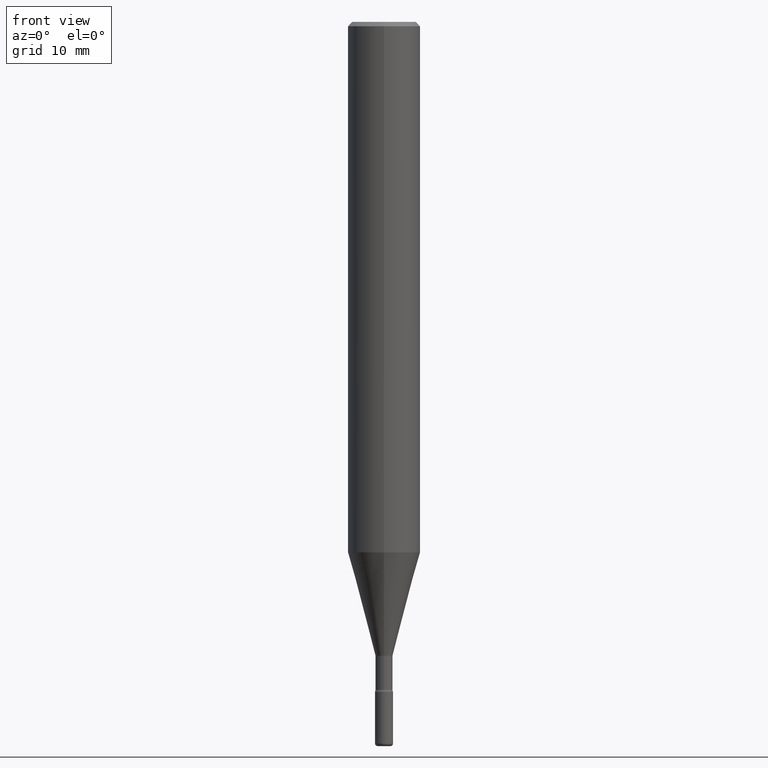
[diagram: clean part render]
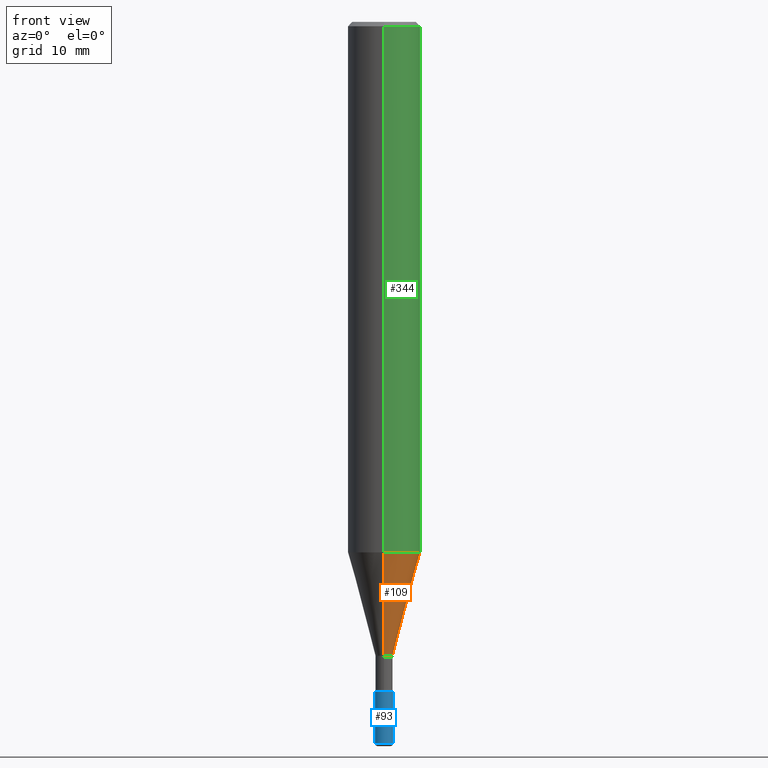
[diagram: same view with three faces highlighted in distinct colors, each labeled with its STEP entity id]
A machine part, front view with three faces highlighted in distinct colors.
Their STEP definitions:

[orange] entity #109 — the highlighted conical surface has half-angle 15 deg.
#7 = ORIENTED_EDGE ( 'NONE', *, *, #61, .T. ) ;
#13 = CARTESIAN_POINT ( 'NONE',  ( 5.345986003927349393E-29, -7.632751320780443550E-15, -2.186092501787273434 ) ) ;
#23 = AXIS2_PLACEMENT_3D ( 'NONE', #532, #141, #454 ) ;
#61 = EDGE_CURVE ( 'NONE', #81, #74, #410, .T. ) ;
#72 = AXIS2_PLACEMENT_3D ( 'NONE', #13, #225, #318 ) ;
#74 = VERTEX_POINT ( 'NONE', #264 ) ;
#81 = VERTEX_POINT ( 'NONE', #167 ) ;
#109 = ADVANCED_FACE ( 'NONE', ( #234 ), #490, .T. ) ;
#114 = EDGE_LOOP ( 'NONE', ( #7, #201, #425, #518 ) ) ;
#119 = DIRECTION ( 'NONE',  ( -6.982962677686265922E-15, -1.000000000000000000, 0.000000000000000000 ) ) ;
#141 = DIRECTION ( 'NONE',  ( -2.445452788277100287E-29, 3.491504277399136299E-15, 1.000000000000000000 ) ) ;
#143 = EDGE_CURVE ( 'NONE', #237, #198, #501, .T. ) ;
#155 = AXIS2_PLACEMENT_3D ( 'NONE', #388, #477, #119 ) ;
#167 = CARTESIAN_POINT ( 'NONE',  ( -2.088681829733692852E-16, -0.02991111260567161020, -2.186092501787273434 ) ) ;
#188 = VECTOR ( 'NONE', #358, 39.37007874015748854 ) ;
#189 = LINE ( 'NONE', #232, #188 ) ;
#198 = VERTEX_POINT ( 'NONE', #539 ) ;
#201 = ORIENTED_EDGE ( 'NONE', *, *, #476, .T. ) ;
#225 = DIRECTION ( 'NONE',  ( -2.445452788277100287E-29, 3.491504277399136299E-15, 1.000000000000000000 ) ) ;
#226 = CARTESIAN_POINT ( 'NONE',  ( -2.088681829733692852E-16, -0.02991111260567161020, -2.186092501787273434 ) ) ;
#230 = CARTESIAN_POINT ( 'NONE',  ( -8.728703347107386696E-16, -0.1250000000000064115, -1.831215942796415863 ) ) ;
#232 = CARTESIAN_POINT ( 'NONE',  ( 2.125312378046224579E-16, 0.02991111260565634464, -2.186092501787273434 ) ) ;
#234 = FACE_OUTER_BOUND ( 'NONE', #114, .T. ) ;
#237 = VERTEX_POINT ( 'NONE', #230 ) ;
#264 = CARTESIAN_POINT ( 'NONE',  ( 5.503548287523965372E-16, 0.02991111260565634811, -2.186092501787273434 ) ) ;
#280 = LINE ( 'NONE', #226, #543 ) ;
#318 = DIRECTION ( 'NONE',  ( -6.982962677686265922E-15, -1.000000000000000000, 0.000000000000000000 ) ) ;
#358 = DIRECTION ( 'NONE',  ( 1.839019923739597949E-15, 0.2588190451025246253, 0.9659258262890670910 ) ) ;
#388 = CARTESIAN_POINT ( 'NONE',  ( 5.345986003927349393E-29, -7.632751320780443550E-15, -2.186092501787273434 ) ) ;
#410 = CIRCLE ( 'NONE', #155, 0.02991111260566397742 ) ;
#422 = EDGE_CURVE ( 'NONE', #81, #237, #280, .T. ) ;
#425 = ORIENTED_EDGE ( 'NONE', *, *, #143, .F. ) ;
#454 = DIRECTION ( 'NONE',  ( -6.982962677686265922E-15, -1.000000000000000000, 4.370956789862821150E-15 ) ) ;
#476 = EDGE_CURVE ( 'NONE', #74, #198, #189, .T. ) ;
#477 = DIRECTION ( 'NONE',  ( -2.445452788277100287E-29, 3.491504277399136299E-15, 1.000000000000000000 ) ) ;
#490 = CONICAL_SURFACE ( 'NONE', #72, 0.02991111260566397742, 0.2617993877991499629 ) ;
#497 = DIRECTION ( 'NONE',  ( -1.807323732225328167E-15, -0.2588190451025179084, 0.9659258262890690894 ) ) ;
#501 = CIRCLE ( 'NONE', #23, 0.1250000000000000000 ) ;
#518 = ORIENTED_EDGE ( 'NONE', *, *, #422, .F. ) ;
#532 = CARTESIAN_POINT ( 'NONE',  ( 4.478152133248975156E-29, -6.393698297115179896E-15, -1.831215942796416307 ) ) ;
#539 = CARTESIAN_POINT ( 'NONE',  ( 8.881784197001696058E-16, 0.1249999999999935746, -1.831215942796416973 ) ) ;
#543 = VECTOR ( 'NONE', #497, 39.37007874015748143 ) ;

[blue] entity #93 — the highlighted cylindrical surface (edge-blend (fillet) strip) has radius 0.7937 mm, axis along (-0, 0, 1).
#1 = DIRECTION ( 'NONE',  ( -2.445468806185136597E-29, 3.491481338843145583E-15, 1.000000000000000000 ) ) ;
#5 = CARTESIAN_POINT ( 'NONE',  ( -0.03125000000000000000, 2.220446049250313081E-16, -1.537167215704658057E-30 ) ) ;
#16 = CARTESIAN_POINT ( 'NONE',  ( 5.653923879900035579E-29, -8.072304855405352780E-15, -2.312000000000000277 ) ) ;
#51 = CARTESIAN_POINT ( 'NONE',  ( 0.03125000000000000000, -8.290522439083049403E-15, -2.312000000000000277 ) ) ;
#58 = AXIS2_PLACEMENT_3D ( 'NONE', #566, #261, #434 ) ;
#67 = ORIENTED_EDGE ( 'NONE', *, *, #140, .T. ) ;
#76 = CYLINDRICAL_SURFACE ( 'NONE', #58, 0.03125000000000000000 ) ;
#87 = CARTESIAN_POINT ( 'NONE',  ( 6.089217327400989947E-29, -8.693788533719431716E-15, -2.489999999999999769 ) ) ;
#93 = ADVANCED_FACE ( 'NONE', ( #306 ), #76, .T. ) ;
#108 = CIRCLE ( 'NONE', #433, 0.03125000000000000000 ) ;
#124 = VERTEX_POINT ( 'NONE', #489 ) ;
#125 = ORIENTED_EDGE ( 'NONE', *, *, #327, .T. ) ;
#135 = EDGE_LOOP ( 'NONE', ( #371, #67, #125, #470 ) ) ;
#137 = DIRECTION ( 'NONE',  ( -2.445468806185136597E-29, 3.491481338843145583E-15, 1.000000000000000000 ) ) ;
#140 = EDGE_CURVE ( 'NONE', #124, #253, #163, .T. ) ;
#146 = AXIS2_PLACEMENT_3D ( 'NONE', #87, #137, #415 ) ;
#163 = CIRCLE ( 'NONE', #146, 0.03125000000000000000 ) ;
#199 = LINE ( 'NONE', #334, #323 ) ;
#247 = VERTEX_POINT ( 'NONE', #51 ) ;
#253 = VERTEX_POINT ( 'NONE', #529 ) ;
#260 = VECTOR ( 'NONE', #363, 39.37007874015748143 ) ;
#261 = DIRECTION ( 'NONE',  ( -2.445468806185136597E-29, 3.491481338843145583E-15, 1.000000000000000000 ) ) ;
#306 = FACE_OUTER_BOUND ( 'NONE', #135, .T. ) ;
#323 = VECTOR ( 'NONE', #506, 39.37007874015748143 ) ;
#327 = EDGE_CURVE ( 'NONE', #253, #247, #199, .T. ) ;
#334 = CARTESIAN_POINT ( 'NONE',  ( 0.03125000000000000000, -2.182175836776958347E-16, 1.523805242436229935E-30 ) ) ;
#363 = DIRECTION ( 'NONE',  ( -2.445468806185136877E-29, 3.491481338843145188E-15, 1.000000000000000000 ) ) ;
#371 = ORIENTED_EDGE ( 'NONE', *, *, #485, .F. ) ;
#404 = DIRECTION ( 'NONE',  ( 1.000000000000000000, -6.982962677686262766E-15, 0.000000000000000000 ) ) ;
#407 = VERTEX_POINT ( 'NONE', #460 ) ;
#415 = DIRECTION ( 'NONE',  ( 1.000000000000000000, -6.982962677686294321E-15, 0.000000000000000000 ) ) ;
#433 = AXIS2_PLACEMENT_3D ( 'NONE', #16, #1, #404 ) ;
#434 = DIRECTION ( 'NONE',  ( 1.000000000000000000, -6.982962677686266711E-15, 4.876176775795935793E-29 ) ) ;
#445 = LINE ( 'NONE', #5, #260 ) ;
#460 = CARTESIAN_POINT ( 'NONE',  ( -0.03125000000000000000, -8.161002089637361728E-15, -2.312000000000000277 ) ) ;
#467 = EDGE_CURVE ( 'NONE', #407, #247, #108, .T. ) ;
#470 = ORIENTED_EDGE ( 'NONE', *, *, #467, .F. ) ;
#485 = EDGE_CURVE ( 'NONE', #124, #407, #445, .T. ) ;
#489 = CARTESIAN_POINT ( 'NONE',  ( -0.03125000000000018041, -8.471743928794400408E-15, -2.489999999999999769 ) ) ;
#506 = DIRECTION ( 'NONE',  ( -2.445468806185136877E-29, 3.491481338843145188E-15, 1.000000000000000000 ) ) ;
#529 = CARTESIAN_POINT ( 'NONE',  ( 0.03125000000000018041, -8.912006117397128339E-15, -2.489999999999999769 ) ) ;
#566 = CARTESIAN_POINT ( 'NONE',  ( 0.000000000000000000, 0.000000000000000000, 0.000000000000000000 ) ) ;

[green] entity #344 — the highlighted cylindrical surface (edge-blend (fillet) strip) has radius 3.175 mm, axis along (-0, 0, 1).
#11 = AXIS2_PLACEMENT_3D ( 'NONE', #299, #557, #565 ) ;
#23 = AXIS2_PLACEMENT_3D ( 'NONE', #532, #141, #454 ) ;
#55 = CARTESIAN_POINT ( 'NONE',  ( -8.728703347107832402E-16, -0.1250000000000000000, 9.145114335661381006E-16 ) ) ;
#59 = LINE ( 'NONE', #55, #196 ) ;
#64 = ORIENTED_EDGE ( 'NONE', *, *, #248, .T. ) ;
#69 = DIRECTION ( 'NONE',  ( -6.982962677686265922E-15, -1.000000000000000000, 3.491504277399136299E-15 ) ) ;
#98 = CIRCLE ( 'NONE', #11, 0.1250000000000000000 ) ;
#106 = VECTOR ( 'NONE', #571, 39.37007874015748143 ) ;
#141 = DIRECTION ( 'NONE',  ( -2.445452788277100287E-29, 3.491504277399136299E-15, 1.000000000000000000 ) ) ;
#143 = EDGE_CURVE ( 'NONE', #237, #198, #501, .T. ) ;
#148 = VERTEX_POINT ( 'NONE', #405 ) ;
#153 = CYLINDRICAL_SURFACE ( 'NONE', #184, 0.1250000000000000000 ) ;
#184 = AXIS2_PLACEMENT_3D ( 'NONE', #417, #373, #69 ) ;
#187 = VERTEX_POINT ( 'NONE', #364 ) ;
#190 = CARTESIAN_POINT ( 'NONE',  ( 8.881784197001251337E-16, 0.1250000000000000000, 4.163536421635405055E-17 ) ) ;
#195 = FACE_OUTER_BOUND ( 'NONE', #411, .T. ) ;
#196 = VECTOR ( 'NONE', #439, 39.37007874015748143 ) ;
#198 = VERTEX_POINT ( 'NONE', #539 ) ;
#214 = ORIENTED_EDGE ( 'NONE', *, *, #526, .F. ) ;
#230 = CARTESIAN_POINT ( 'NONE',  ( -8.728703347107386696E-16, -0.1250000000000064115, -1.831215942796415863 ) ) ;
#231 = EDGE_CURVE ( 'NONE', #237, #148, #59, .T. ) ;
#237 = VERTEX_POINT ( 'NONE', #230 ) ;
#248 = EDGE_CURVE ( 'NONE', #198, #187, #398, .T. ) ;
#299 = CARTESIAN_POINT ( 'NONE',  ( 3.668179182415653390E-31, -5.237256416098709156E-17, -0.01500000000000001332 ) ) ;
#344 = ADVANCED_FACE ( 'NONE', ( #195 ), #153, .T. ) ;
#348 = ORIENTED_EDGE ( 'NONE', *, *, #231, .F. ) ;
#364 = CARTESIAN_POINT ( 'NONE',  ( 8.881784197001701974E-16, 0.1249999999999999445, -0.01500000000000044874 ) ) ;
#373 = DIRECTION ( 'NONE',  ( -2.445452788277100287E-29, 3.491504277399136299E-15, 1.000000000000000000 ) ) ;
#398 = LINE ( 'NONE', #190, #106 ) ;
#405 = CARTESIAN_POINT ( 'NONE',  ( -8.728703347107828458E-16, -0.1250000000000000555, -0.01499999999999957791 ) ) ;
#411 = EDGE_LOOP ( 'NONE', ( #528, #64, #214, #348 ) ) ;
#417 = CARTESIAN_POINT ( 'NONE',  ( -1.169113584055446105E-44, 1.669184350826100908E-30, 4.780733988912460139E-16 ) ) ;
#439 = DIRECTION ( 'NONE',  ( -2.445452788277100006E-29, 3.491504277399136299E-15, 1.000000000000000000 ) ) ;
#454 = DIRECTION ( 'NONE',  ( -6.982962677686265922E-15, -1.000000000000000000, 4.370956789862821150E-15 ) ) ;
#501 = CIRCLE ( 'NONE', #23, 0.1250000000000000000 ) ;
#526 = EDGE_CURVE ( 'NONE', #148, #187, #98, .T. ) ;
#528 = ORIENTED_EDGE ( 'NONE', *, *, #143, .T. ) ;
#532 = CARTESIAN_POINT ( 'NONE',  ( 4.478152133248975156E-29, -6.393698297115179896E-15, -1.831215942796416307 ) ) ;
#539 = CARTESIAN_POINT ( 'NONE',  ( 8.881784197001696058E-16, 0.1249999999999935746, -1.831215942796416973 ) ) ;
#557 = DIRECTION ( 'NONE',  ( -2.445452788277100287E-29, 3.491504277399136299E-15, 1.000000000000000000 ) ) ;
#565 = DIRECTION ( 'NONE',  ( -6.982962677686265922E-15, -1.000000000000000000, 3.483106191921935554E-15 ) ) ;
#571 = DIRECTION ( 'NONE',  ( -2.445452788277100006E-29, 3.491504277399136299E-15, 1.000000000000000000 ) ) ;